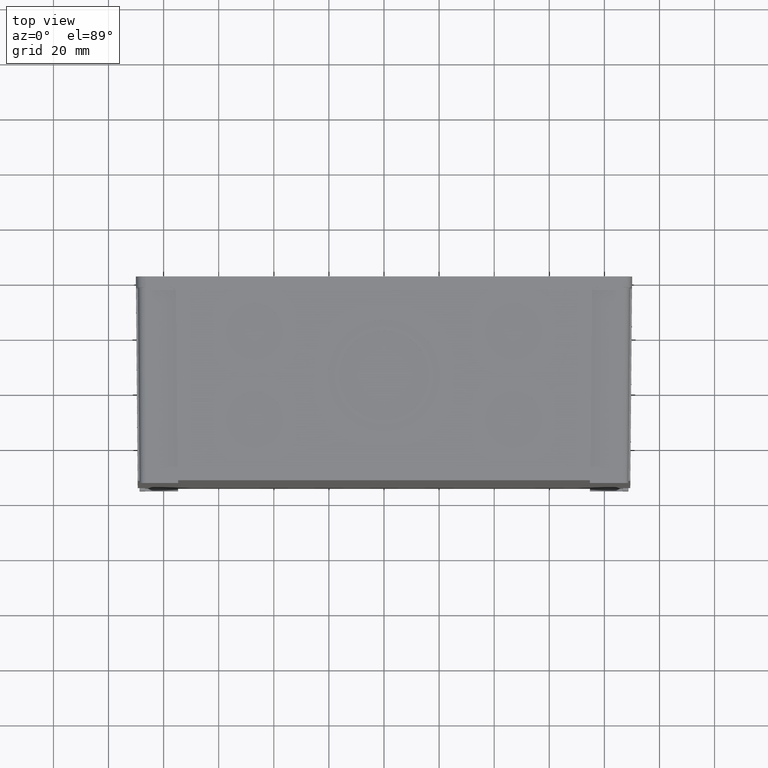
[diagram: clean part render]
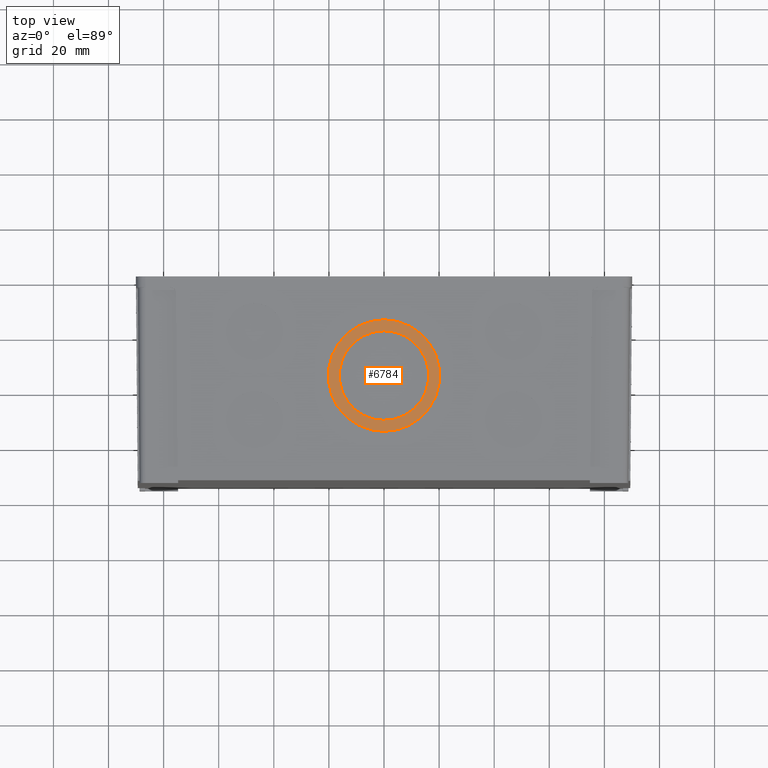
[diagram: same view with one face highlighted and labeled with its STEP entity id]
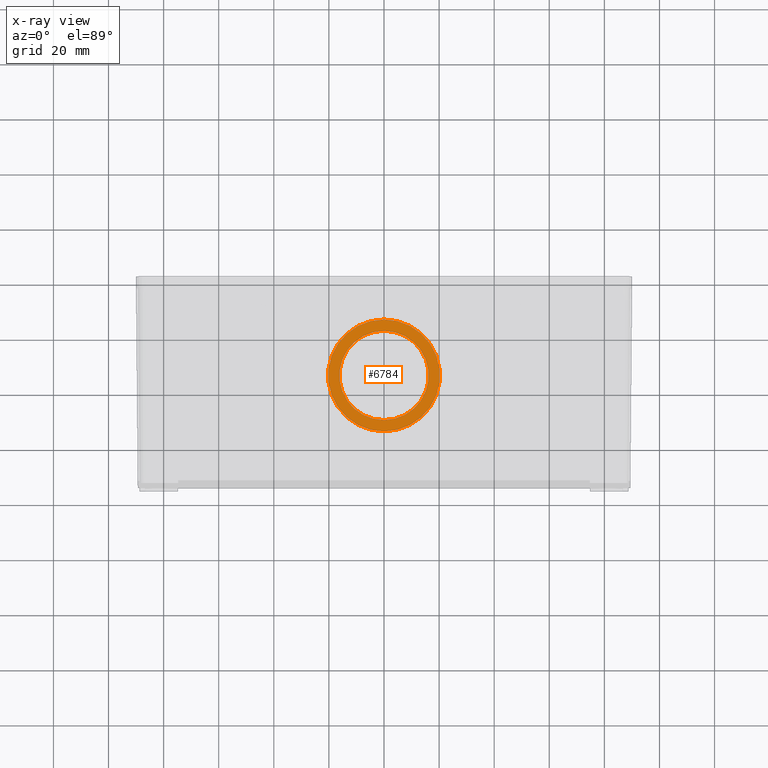
[diagram: x-ray of the same camera — body ghosted, the highlighted face saturated]
A machine part, top view. The second image highlights one B-rep face of the part: STEP entity #6784.
The next image is the same camera in x-ray: the body ghosted, the highlighted face saturated — about 0% of this face is hidden behind the body in this view.
In plain terms, the highlighted planar face has unit normal (0, -0.0087, 1).
Its self-contained STEP definition (entity closure, byte-faithful):
#718 = EDGE_CURVE ( 'NONE', #2099, #2042, #7077, .T. ) ;
#1299 = AXIS2_PLACEMENT_3D ( 'NONE', #7371, #1506, #5496 ) ;
#1421 = CARTESIAN_POINT ( 'NONE',  ( 0.0000000000000000000, -35.99688392321049700, 89.53585233744568900 ) ) ;
#1506 = DIRECTION ( 'NONE',  ( 0.0000000000000000000, -0.008726535498373953800, 0.9999619230641713100 ) ) ;
#2042 = VERTEX_POINT ( 'NONE', #6137 ) ;
#2087 = CARTESIAN_POINT ( 'NONE',  ( 0.0000000000000000000, -35.99688392321049700, 89.53585233744568900 ) ) ;
#2099 = VERTEX_POINT ( 'NONE', #9116 ) ;
#2751 = DIRECTION ( 'NONE',  ( 0.0000000000000000000, -0.008726535498373953800, 0.9999619230641713100 ) ) ;
#3057 = AXIS2_PLACEMENT_3D ( 'NONE', #1421, #8176, #8132 ) ;
#3213 = ORIENTED_EDGE ( 'NONE', *, *, #12209, .T. ) ;
#3551 = PLANE ( 'NONE',  #1299 ) ;
#3964 = FACE_OUTER_BOUND ( 'NONE', #5460, .T. ) ;
#4189 = CARTESIAN_POINT ( 'NONE',  ( 0.0000000000000000000, -52.24626517300328000, 89.39404613559712200 ) ) ;
#4458 = CIRCLE ( 'NONE', #9111, 20.25000000000001400 ) ;
#4518 = EDGE_LOOP ( 'NONE', ( #8559, #5401 ) ) ;
#4837 = DIRECTION ( 'NONE',  ( 0.0000000000000000000, -0.008726535498373953800, 0.9999619230641713100 ) ) ;
#4958 = CARTESIAN_POINT ( 'NONE',  ( 0.0000000000000000000, -35.99688392321049700, 89.53585233744568900 ) ) ;
#5401 = ORIENTED_EDGE ( 'NONE', *, *, #7547, .F. ) ;
#5460 = EDGE_LOOP ( 'NONE', ( #8379, #3213 ) ) ;
#5496 = DIRECTION ( 'NONE',  ( 0.0000000000000000000, -0.9999619230641713100, -0.008726535498373953800 ) ) ;
#5609 = CARTESIAN_POINT ( 'NONE',  ( 1.990051048614449700E-015, -19.74750267341770600, 89.67765853929427100 ) ) ;
#5646 = DIRECTION ( 'NONE',  ( 0.0000000000000000000, -0.9999619230641713100, -0.008726535498373775100 ) ) ;
#6137 = CARTESIAN_POINT ( 'NONE',  ( 2.479909768273391900E-015, -15.74765498116101600, 89.71256468128777300 ) ) ;
#6784 = ADVANCED_FACE ( 'NONE', ( #11663, #3964 ), #3551, .T. ) ;
#6806 = AXIS2_PLACEMENT_3D ( 'NONE', #2087, #6893, #11563 ) ;
#6893 = DIRECTION ( 'NONE',  ( 0.0000000000000000000, -0.008726535498373953800, 0.9999619230641713100 ) ) ;
#7041 = AXIS2_PLACEMENT_3D ( 'NONE', #10466, #2751, #5646 ) ;
#7077 = CIRCLE ( 'NONE', #3057, 20.25000000000001400 ) ;
#7371 = CARTESIAN_POINT ( 'NONE',  ( 0.0000000000000000000, -35.99688392321049700, 89.53585233744568900 ) ) ;
#7547 = EDGE_CURVE ( 'NONE', #10153, #12383, #11505, .T. ) ;
#8132 = DIRECTION ( 'NONE',  ( 0.0000000000000000000, -0.9999619230641712000, -0.008726535498374085600 ) ) ;
#8176 = DIRECTION ( 'NONE',  ( 0.0000000000000000000, -0.008726535498373953800, 0.9999619230641713100 ) ) ;
#8297 = CIRCLE ( 'NONE', #6806, 16.25000000000000000 ) ;
#8379 = ORIENTED_EDGE ( 'NONE', *, *, #718, .T. ) ;
#8559 = ORIENTED_EDGE ( 'NONE', *, *, #9756, .F. ) ;
#9111 = AXIS2_PLACEMENT_3D ( 'NONE', #4958, #4837, #11704 ) ;
#9116 = CARTESIAN_POINT ( 'NONE',  ( 0.0000000000000000000, -56.24611286525997400, 89.35913999360362000 ) ) ;
#9756 = EDGE_CURVE ( 'NONE', #12383, #10153, #8297, .T. ) ;
#10153 = VERTEX_POINT ( 'NONE', #5609 ) ;
#10466 = CARTESIAN_POINT ( 'NONE',  ( 0.0000000000000000000, -35.99688392321049700, 89.53585233744568900 ) ) ;
#11505 = CIRCLE ( 'NONE', #7041, 16.25000000000000000 ) ;
#11563 = DIRECTION ( 'NONE',  ( 0.0000000000000000000, -0.9999619230641713100, -0.008726535498373775100 ) ) ;
#11663 = FACE_BOUND ( 'NONE', #4518, .T. ) ;
#11704 = DIRECTION ( 'NONE',  ( 0.0000000000000000000, -0.9999619230641712000, -0.008726535498374085600 ) ) ;
#12209 = EDGE_CURVE ( 'NONE', #2042, #2099, #4458, .T. ) ;
#12383 = VERTEX_POINT ( 'NONE', #4189 ) ;